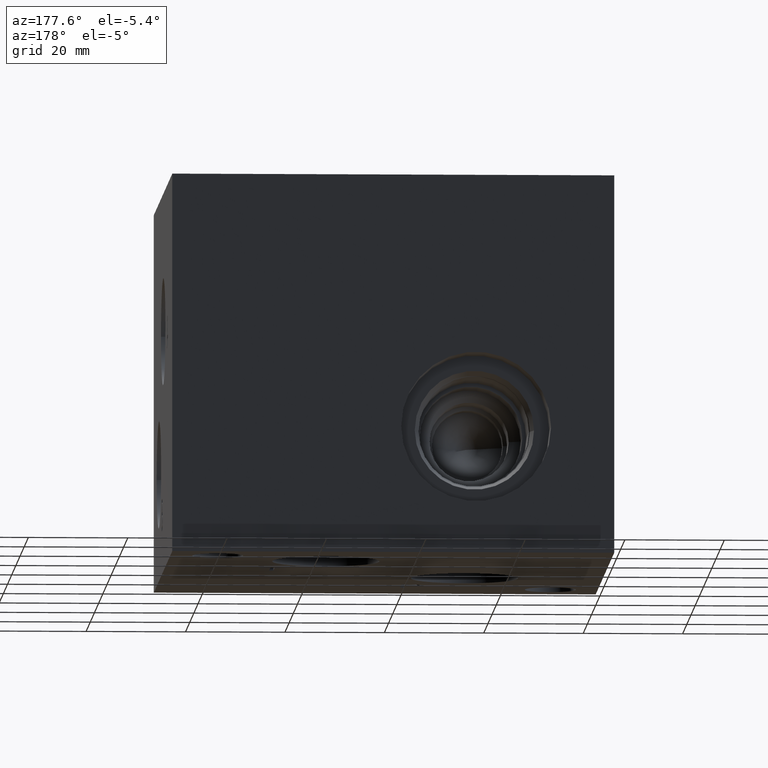
[diagram: clean part render]
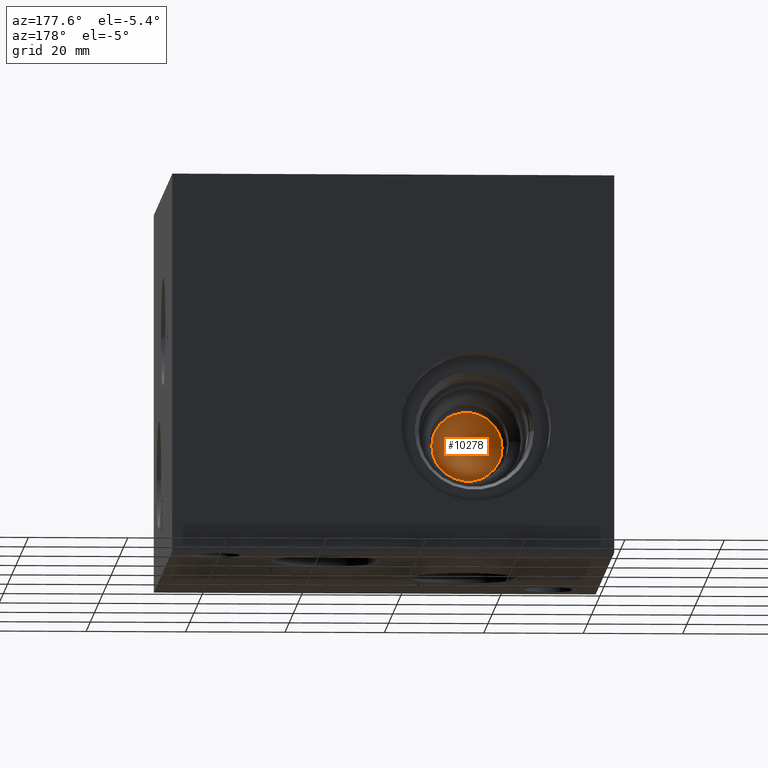
[diagram: same view with one face highlighted and labeled with its STEP entity id]
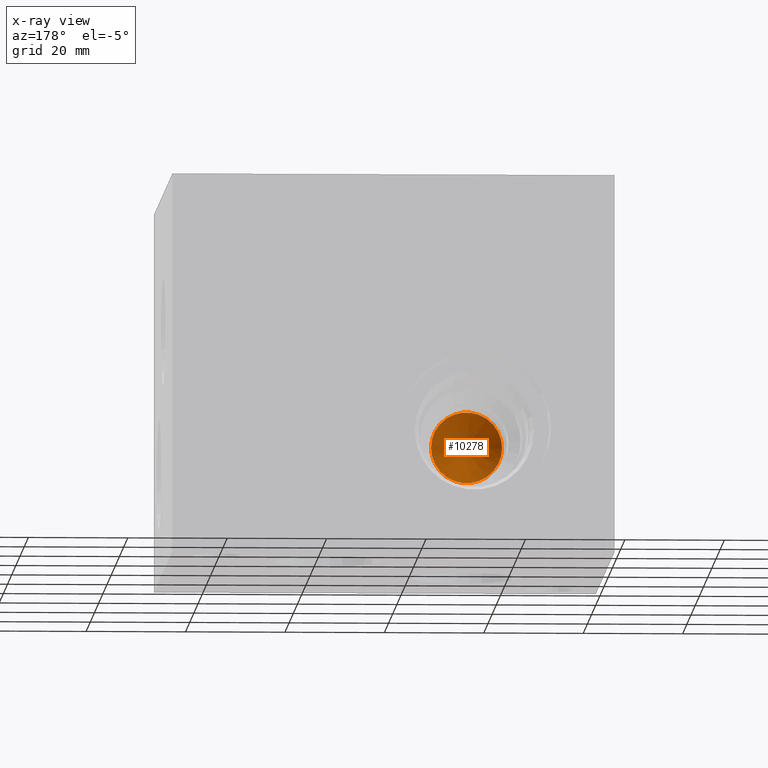
[diagram: x-ray of the same camera — body ghosted, the highlighted face saturated]
A machine part, auxiliary view. The second image highlights one B-rep face of the part: STEP entity #10278.
The next image is the same camera in x-ray: the body ghosted, the highlighted face saturated — about 0% of this face is hidden behind the body in this view.
In plain terms, the highlighted conical surface has half-angle 60 deg.
Its self-contained STEP definition (entity closure, byte-faithful):
#65=CONICAL_SURFACE('',#10745,7.145,1.04719754840022);
#152=CIRCLE('',#10743,7.145);
#153=CIRCLE('',#10744,7.145);
#1086=FACE_OUTER_BOUND('',#1668,.T.);
#1668=EDGE_LOOP('',(#9006,#9007,#9008,#9009));
#2676=LINE('',#17529,#3656);
#3656=VECTOR('',#12625,7.145);
#4884=VERTEX_POINT('',#17522);
#4885=VERTEX_POINT('',#17524);
#4886=VERTEX_POINT('',#17528);
#6284=EDGE_CURVE('',#4884,#4885,#152,.T.);
#6285=EDGE_CURVE('',#4885,#4884,#153,.T.);
#6286=EDGE_CURVE('',#4884,#4886,#2676,.T.);
#9006=ORIENTED_EDGE('',*,*,#6285,.F.);
#9007=ORIENTED_EDGE('',*,*,#6284,.F.);
#9008=ORIENTED_EDGE('',*,*,#6286,.T.);
#9009=ORIENTED_EDGE('',*,*,#6286,.F.);
#10278=ADVANCED_FACE('',(#1086),#65,.F.);
#10743=AXIS2_PLACEMENT_3D('',#17525,#12619,#12620);
#10744=AXIS2_PLACEMENT_3D('',#17526,#12621,#12622);
#10745=AXIS2_PLACEMENT_3D('',#17527,#12623,#12624);
#12619=DIRECTION('center_axis',(0.,-1.,0.));
#12620=DIRECTION('ref_axis',(1.,0.,0.));
#12621=DIRECTION('center_axis',(0.,-1.,0.));
#12622=DIRECTION('ref_axis',(1.,0.,0.));
#12623=DIRECTION('center_axis',(0.,1.,0.));
#12624=DIRECTION('ref_axis',(1.,0.,0.));
#12625=DIRECTION('',(0.866025402386252,-0.500000002421731,1.06057523701262E-16));
#17522=CARTESIAN_POINT('',(20.6426,42.8112654,25.4));
#17524=CARTESIAN_POINT('',(34.9326,42.8112654,25.4));
#17525=CARTESIAN_POINT('Origin',(27.7876,42.8112654,25.4));
#17526=CARTESIAN_POINT('Origin',(27.7876,42.8112654,25.4));
#17527=CARTESIAN_POINT('Origin',(27.7876,42.8112654,25.4));
#17528=CARTESIAN_POINT('',(27.7876,38.6860977,25.4));
#17529=CARTESIAN_POINT('',(20.6426,42.8112654,25.4));